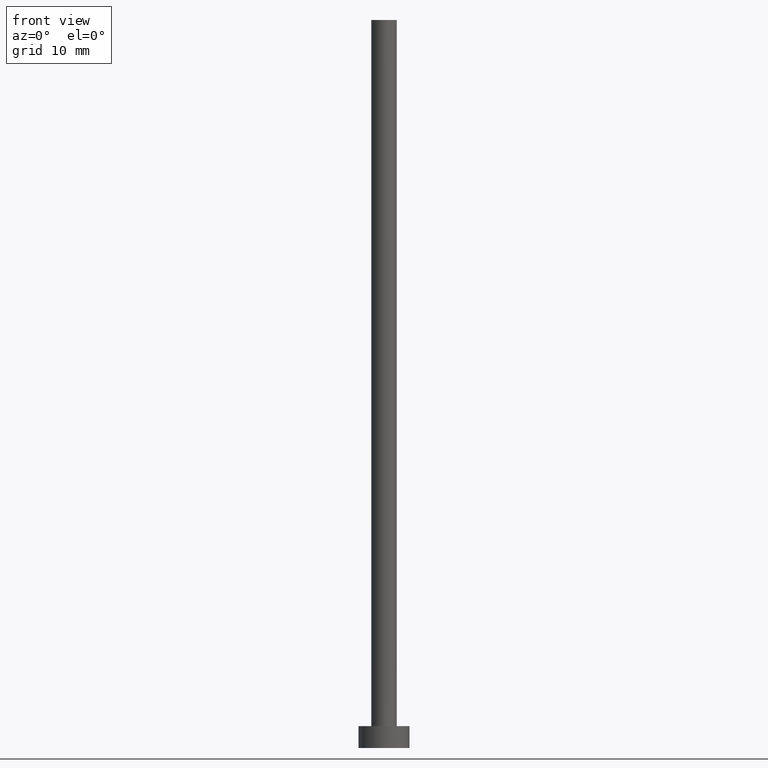
[diagram: clean part render]
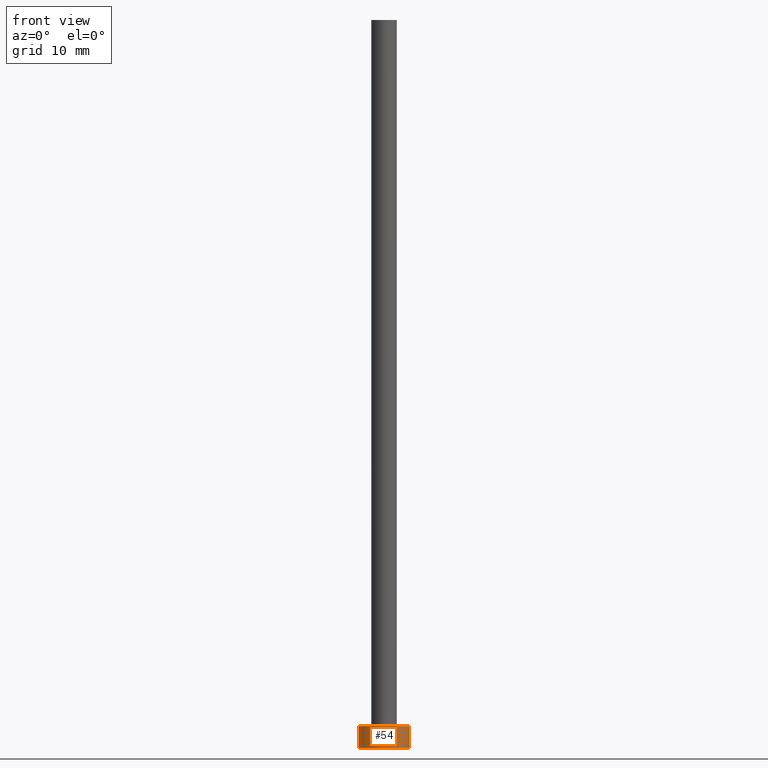
[diagram: same view with one face highlighted and labeled with its STEP entity id]
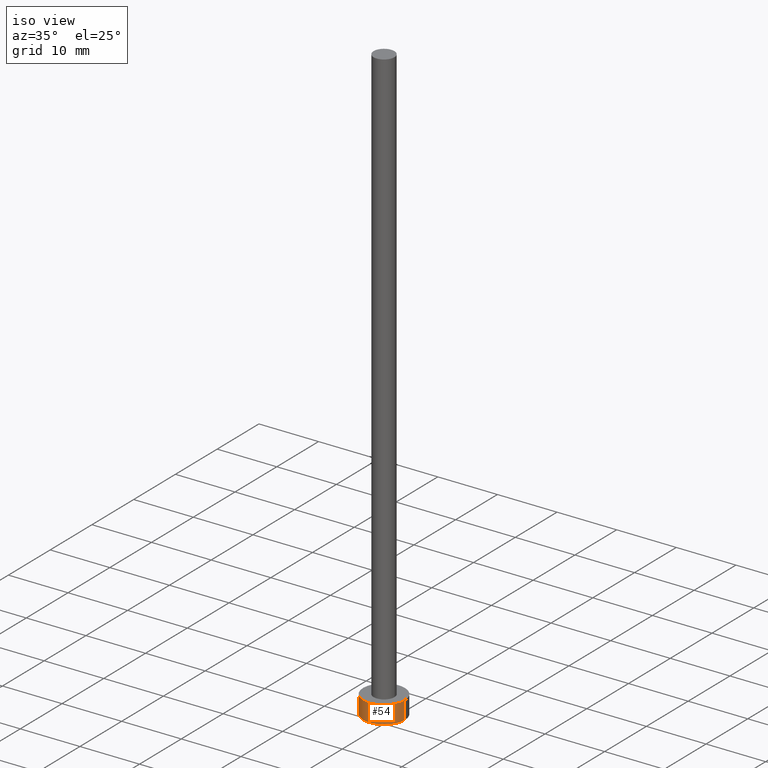
[diagram: same view with one face highlighted and labeled with its STEP entity id]
A machine part, front view. The second image highlights one B-rep face of the part: STEP entity #54.
A second angle (iso view) of the same face is appended — the face is thin or edge-on in the first view.
In plain terms, the highlighted cylindrical surface (edge-blend (fillet) strip) has radius 3.5 mm, axis along (-0, -0, -1).
Its self-contained STEP definition (entity closure, byte-faithful):
#8 = VERTEX_POINT ( 'NONE', #23 ) ;
#10 = CARTESIAN_POINT ( 'NONE',  ( -3.500000000000000444, 0.000000000000000000, 3.000000000000000000 ) ) ;
#13 = DIRECTION ( 'NONE',  ( -0.000000000000000000, -0.000000000000000000, -1.000000000000000000 ) ) ;
#19 = DIRECTION ( 'NONE',  ( 1.000000000000000000, 0.000000000000000000, 0.000000000000000000 ) ) ;
#23 = CARTESIAN_POINT ( 'NONE',  ( 3.500000000000000444, 4.286263797015737088E-16, 3.000000000000000000 ) ) ;
#24 = CARTESIAN_POINT ( 'NONE',  ( -3.500000000000000444, 0.000000000000000000, 0.000000000000000000 ) ) ;
#29 = LINE ( 'NONE', #10, #158 ) ;
#31 = VERTEX_POINT ( 'NONE', #145 ) ;
#32 = EDGE_CURVE ( 'NONE', #242, #8, #45, .T. ) ;
#33 = CARTESIAN_POINT ( 'NONE',  ( 0.000000000000000000, 0.000000000000000000, 3.000000000000000000 ) ) ;
#37 = EDGE_LOOP ( 'NONE', ( #123, #214, #186, #115 ) ) ;
#45 = CIRCLE ( 'NONE', #87, 3.500000000000000444 ) ;
#53 = CARTESIAN_POINT ( 'NONE',  ( 0.000000000000000000, 0.000000000000000000, 0.000000000000000000 ) ) ;
#54 = ADVANCED_FACE ( 'NONE', ( #99 ), #111, .T. ) ;
#60 = EDGE_CURVE ( 'NONE', #140, #31, #69, .T. ) ;
#63 = EDGE_CURVE ( 'NONE', #8, #31, #166, .T. ) ;
#69 = CIRCLE ( 'NONE', #116, 3.500000000000000444 ) ;
#87 = AXIS2_PLACEMENT_3D ( 'NONE', #91, #109, #92 ) ;
#91 = CARTESIAN_POINT ( 'NONE',  ( 0.000000000000000000, 0.000000000000000000, 3.000000000000000000 ) ) ;
#92 = DIRECTION ( 'NONE',  ( 1.000000000000000000, 0.000000000000000000, 0.000000000000000000 ) ) ;
#99 = FACE_OUTER_BOUND ( 'NONE', #37, .T. ) ;
#109 = DIRECTION ( 'NONE',  ( 0.000000000000000000, 0.000000000000000000, 1.000000000000000000 ) ) ;
#111 = CYLINDRICAL_SURFACE ( 'NONE', #233, 3.500000000000000444 ) ;
#115 = ORIENTED_EDGE ( 'NONE', *, *, #60, .T. ) ;
#116 = AXIS2_PLACEMENT_3D ( 'NONE', #53, #190, #19 ) ;
#123 = ORIENTED_EDGE ( 'NONE', *, *, #63, .F. ) ;
#135 = CARTESIAN_POINT ( 'NONE',  ( -3.500000000000000444, 0.000000000000000000, 3.000000000000000000 ) ) ;
#140 = VERTEX_POINT ( 'NONE', #24 ) ;
#145 = CARTESIAN_POINT ( 'NONE',  ( 3.500000000000000444, 4.286263797015737088E-16, 0.000000000000000000 ) ) ;
#147 = VECTOR ( 'NONE', #150, 1000.000000000000000 ) ;
#150 = DIRECTION ( 'NONE',  ( -0.000000000000000000, -0.000000000000000000, -1.000000000000000000 ) ) ;
#158 = VECTOR ( 'NONE', #13, 1000.000000000000000 ) ;
#161 = EDGE_CURVE ( 'NONE', #242, #140, #29, .T. ) ;
#163 = DIRECTION ( 'NONE',  ( -0.000000000000000000, -0.000000000000000000, -1.000000000000000000 ) ) ;
#166 = LINE ( 'NONE', #255, #147 ) ;
#168 = DIRECTION ( 'NONE',  ( -1.000000000000000000, 0.000000000000000000, 0.000000000000000000 ) ) ;
#186 = ORIENTED_EDGE ( 'NONE', *, *, #161, .T. ) ;
#190 = DIRECTION ( 'NONE',  ( 0.000000000000000000, 0.000000000000000000, 1.000000000000000000 ) ) ;
#214 = ORIENTED_EDGE ( 'NONE', *, *, #32, .F. ) ;
#233 = AXIS2_PLACEMENT_3D ( 'NONE', #33, #163, #168 ) ;
#242 = VERTEX_POINT ( 'NONE', #135 ) ;
#255 = CARTESIAN_POINT ( 'NONE',  ( 3.500000000000000444, 4.286263797015737088E-16, 3.000000000000000000 ) ) ;